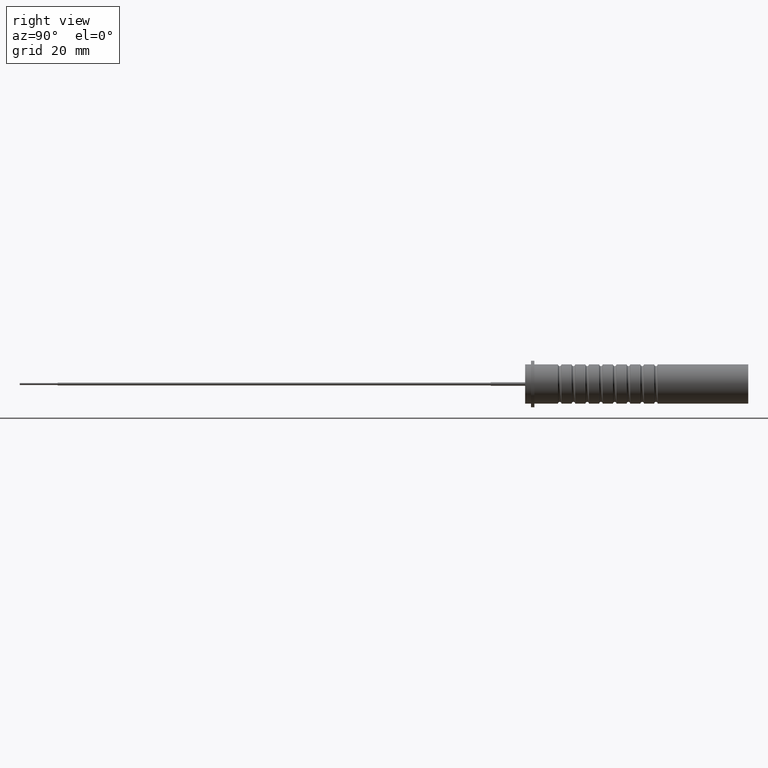
[diagram: clean part render]
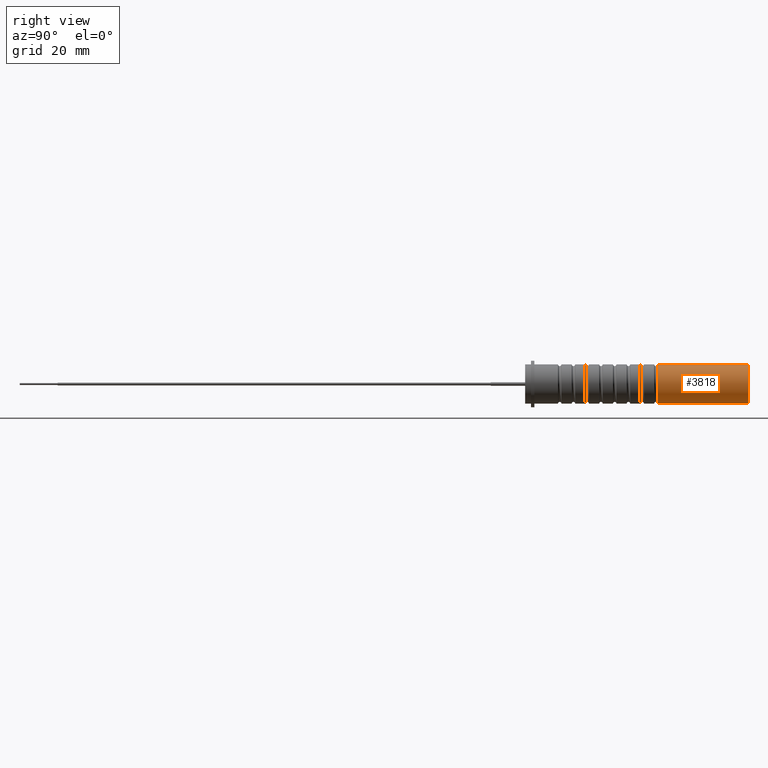
[diagram: same view with one face highlighted and labeled with its STEP entity id]
A machine part, right view. The second image highlights one B-rep face of the part: STEP entity #3818.
In plain terms, the highlighted cylindrical surface (edge-blend (fillet) strip) has radius 5.7 mm, axis along (-0, -1, -0).
Its self-contained STEP definition (entity closure, byte-faithful):
#371 = CIRCLE ( 'NONE', #1285, 5.700000000000000200 ) ;
#561 = LINE ( 'NONE', #3475, #2783 ) ;
#736 = ORIENTED_EDGE ( 'NONE', *, *, #4091, .F. ) ;
#811 = EDGE_LOOP ( 'NONE', ( #2636, #4356, #736, #4369 ) ) ;
#836 = DIRECTION ( 'NONE',  ( 0.0000000000000000000, 1.000000000000000000, 0.0000000000000000000 ) ) ;
#896 = EDGE_CURVE ( 'NONE', #4121, #3003, #561, .T. ) ;
#1285 = AXIS2_PLACEMENT_3D ( 'NONE', #2622, #4542, #2212 ) ;
#1289 = CARTESIAN_POINT ( 'NONE',  ( 6.980486755139912100E-016, 64.90000000000000600, 5.700000000000000200 ) ) ;
#1643 = CYLINDRICAL_SURFACE ( 'NONE', #3928, 5.700000000000000200 ) ;
#1664 = CARTESIAN_POINT ( 'NONE',  ( 0.0000000000000000000, 64.90000000000000600, 0.0000000000000000000 ) ) ;
#1710 = CARTESIAN_POINT ( 'NONE',  ( 0.0000000000000000000, 38.55965999999999400, -5.700000000000000200 ) ) ;
#1939 = VERTEX_POINT ( 'NONE', #2431 ) ;
#2080 = DIRECTION ( 'NONE',  ( -0.0000000000000000000, -1.000000000000000000, -0.0000000000000000000 ) ) ;
#2212 = DIRECTION ( 'NONE',  ( 0.0000000000000000000, 0.0000000000000000000, -1.000000000000000000 ) ) ;
#2431 = CARTESIAN_POINT ( 'NONE',  ( 6.980486755139913100E-016, 38.55965999999999400, 5.700000000000000200 ) ) ;
#2622 = CARTESIAN_POINT ( 'NONE',  ( 0.0000000000000000000, 38.55965999999999400, 0.0000000000000000000 ) ) ;
#2636 = ORIENTED_EDGE ( 'NONE', *, *, #3341, .F. ) ;
#2783 = VECTOR ( 'NONE', #4328, 1000.000000000000000 ) ;
#2896 = VERTEX_POINT ( 'NONE', #1289 ) ;
#3003 = VERTEX_POINT ( 'NONE', #1710 ) ;
#3169 = LINE ( 'NONE', #3957, #4822 ) ;
#3341 = EDGE_CURVE ( 'NONE', #2896, #4121, #4633, .T. ) ;
#3360 = AXIS2_PLACEMENT_3D ( 'NONE', #4608, #836, #3448 ) ;
#3448 = DIRECTION ( 'NONE',  ( 0.0000000000000000000, 0.0000000000000000000, 1.000000000000000000 ) ) ;
#3475 = CARTESIAN_POINT ( 'NONE',  ( 0.0000000000000000000, 64.90000000000000600, -5.700000000000000200 ) ) ;
#3818 = ADVANCED_FACE ( 'NONE', ( #4042 ), #1643, .T. ) ;
#3928 = AXIS2_PLACEMENT_3D ( 'NONE', #1664, #3937, #4304 ) ;
#3937 = DIRECTION ( 'NONE',  ( -0.0000000000000000000, -1.000000000000000000, -0.0000000000000000000 ) ) ;
#3957 = CARTESIAN_POINT ( 'NONE',  ( 6.980486755139912100E-016, 64.90000000000000600, 5.700000000000000200 ) ) ;
#4042 = FACE_OUTER_BOUND ( 'NONE', #811, .T. ) ;
#4091 = EDGE_CURVE ( 'NONE', #3003, #1939, #371, .T. ) ;
#4121 = VERTEX_POINT ( 'NONE', #4884 ) ;
#4304 = DIRECTION ( 'NONE',  ( 0.0000000000000000000, 0.0000000000000000000, -1.000000000000000000 ) ) ;
#4328 = DIRECTION ( 'NONE',  ( -0.0000000000000000000, -1.000000000000000000, -0.0000000000000000000 ) ) ;
#4356 = ORIENTED_EDGE ( 'NONE', *, *, #4727, .T. ) ;
#4369 = ORIENTED_EDGE ( 'NONE', *, *, #896, .F. ) ;
#4542 = DIRECTION ( 'NONE',  ( -0.0000000000000000000, -1.000000000000000000, -0.0000000000000000000 ) ) ;
#4608 = CARTESIAN_POINT ( 'NONE',  ( 0.0000000000000000000, 64.90000000000000600, 0.0000000000000000000 ) ) ;
#4633 = CIRCLE ( 'NONE', #3360, 5.700000000000000200 ) ;
#4727 = EDGE_CURVE ( 'NONE', #2896, #1939, #3169, .T. ) ;
#4822 = VECTOR ( 'NONE', #2080, 1000.000000000000000 ) ;
#4884 = CARTESIAN_POINT ( 'NONE',  ( 0.0000000000000000000, 64.90000000000000600, -5.700000000000000200 ) ) ;